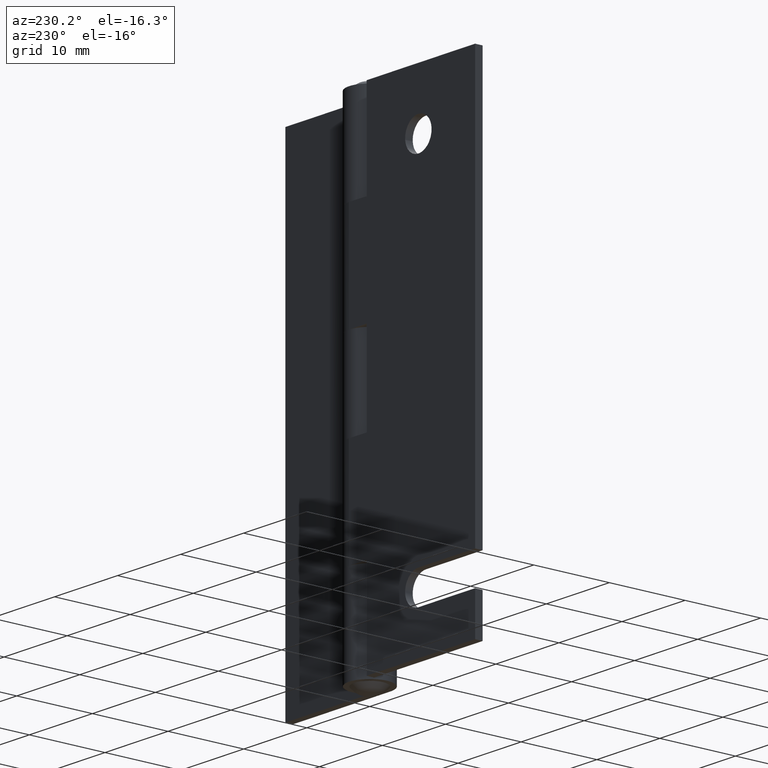
[diagram: clean part render]
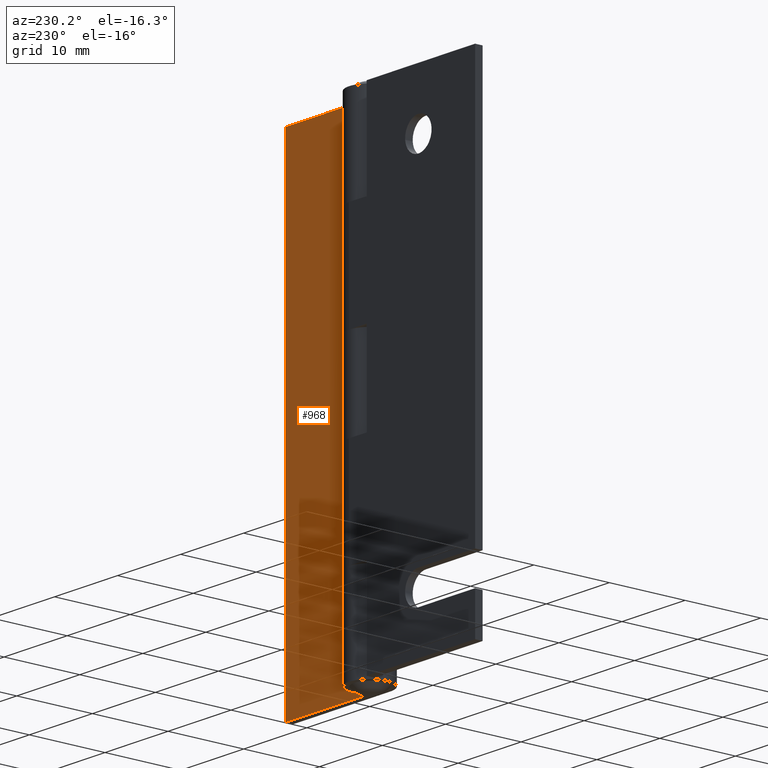
[diagram: same view with one face highlighted and labeled with its STEP entity id]
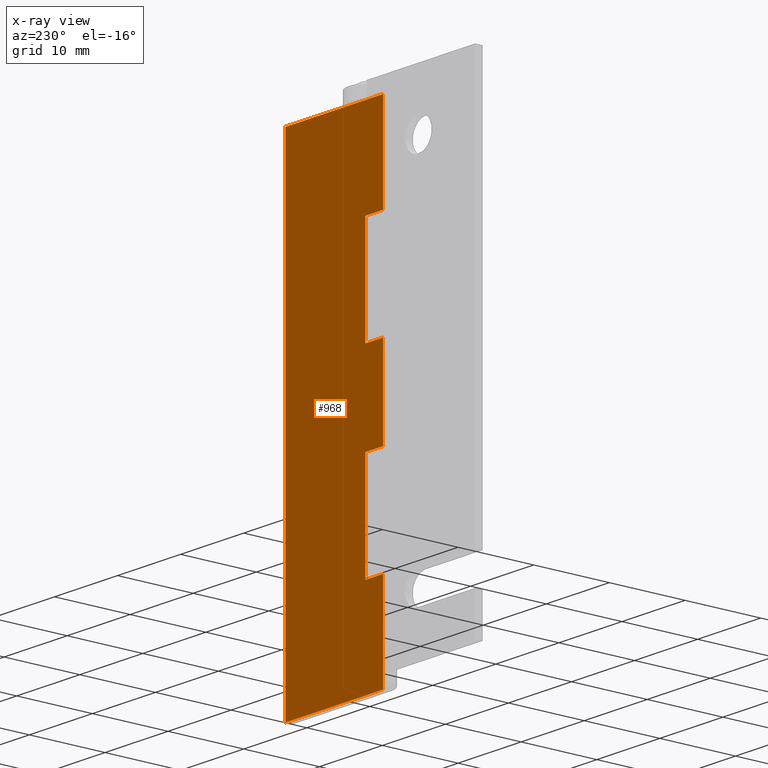
[diagram: x-ray of the same camera — body ghosted, the highlighted face saturated]
A machine part, auxiliary view. The second image highlights one B-rep face of the part: STEP entity #968.
The next image is the same camera in x-ray: the body ghosted, the highlighted face saturated — about 0% of this face is hidden behind the body in this view.
In plain terms, the highlighted face is a freeform B-spline surface patch.
Its self-contained STEP definition (entity closure, byte-faithful):
#460=CARTESIAN_POINT('',(0.0,-1.750000000000000,25.750000000000000));
#461=VERTEX_POINT('',#460);
#481=CARTESIAN_POINT('',(2.800000000000000,-1.750000000000030,25.750000000000000));
#482=VERTEX_POINT('',#481);
#483=CARTESIAN_POINT('',(0.0,-1.750000000000000,25.750000000000000));
#484=CARTESIAN_POINT('',(2.800000000000000,-1.750000000000030,25.750000000000000));
#485=QUASI_UNIFORM_CURVE('',1,(#483,#484),.UNSPECIFIED.,.F.,.U.);
#486=EDGE_CURVE('',#461,#482,#485,.T.);
#508=CARTESIAN_POINT('',(2.800000000000000,-1.750000000000030,12.250000000000000));
#509=VERTEX_POINT('',#508);
#510=CARTESIAN_POINT('',(2.800000000000000,-1.750000000000030,25.750000000000000));
#511=CARTESIAN_POINT('',(2.800000000000000,-1.750000000000030,12.250000000000000));
#512=QUASI_UNIFORM_CURVE('',1,(#510,#511),.UNSPECIFIED.,.F.,.U.);
#513=EDGE_CURVE('',#482,#509,#512,.T.);
#565=CARTESIAN_POINT('',(0.0,-1.750000000000000,12.250000000000000));
#566=VERTEX_POINT('',#565);
#567=CARTESIAN_POINT('',(2.800000000000000,-1.750000000000030,12.250000000000000));
#568=CARTESIAN_POINT('',(0.0,-1.750000000000000,12.250000000000000));
#569=QUASI_UNIFORM_CURVE('',1,(#567,#568),.UNSPECIFIED.,.F.,.U.);
#570=EDGE_CURVE('',#509,#566,#569,.T.);
#636=CARTESIAN_POINT('',(2.800000000000000,-1.750000000000000,37.250000000000000));
#637=VERTEX_POINT('',#636);
#643=CARTESIAN_POINT('',(0.0,-1.750000000000000,37.250000000000000));
#644=VERTEX_POINT('',#643);
#645=CARTESIAN_POINT('',(2.800000000000000,-1.750000000000000,37.250000000000000));
#646=CARTESIAN_POINT('',(0.0,-1.750000000000000,37.250000000000000));
#647=QUASI_UNIFORM_CURVE('',1,(#645,#646),.UNSPECIFIED.,.F.,.U.);
#648=EDGE_CURVE('',#637,#644,#647,.T.);
#684=CARTESIAN_POINT('',(2.800000000000000,-1.750000000000030,50.750000000000000));
#685=VERTEX_POINT('',#684);
#686=CARTESIAN_POINT('',(2.800000000000000,-1.750000000000030,50.750000000000000));
#687=CARTESIAN_POINT('',(2.800000000000000,-1.750000000000000,37.250000000000000));
#688=QUASI_UNIFORM_CURVE('',1,(#686,#687),.UNSPECIFIED.,.F.,.U.);
#689=EDGE_CURVE('',#685,#637,#688,.T.);
#742=CARTESIAN_POINT('',(0.0,-1.750000000000000,50.750000000000000));
#743=VERTEX_POINT('',#742);
#763=CARTESIAN_POINT('',(0.0,-1.750000000000000,50.750000000000000));
#764=CARTESIAN_POINT('',(2.800000000000000,-1.750000000000030,50.750000000000000));
#765=QUASI_UNIFORM_CURVE('',1,(#763,#764),.UNSPECIFIED.,.F.,.U.);
#766=EDGE_CURVE('',#743,#685,#765,.T.);
#782=CARTESIAN_POINT('',(0.0,-1.750000000000000,0.0));
#783=VERTEX_POINT('',#782);
#805=CARTESIAN_POINT('',(15.500000000000000,-1.750000000000000,0.0));
#806=VERTEX_POINT('',#805);
#807=CARTESIAN_POINT('',(0.0,-1.750000000000000,0.0));
#808=CARTESIAN_POINT('',(15.500000000000000,-1.750000000000000,0.0));
#809=QUASI_UNIFORM_CURVE('',1,(#807,#808),.UNSPECIFIED.,.F.,.U.);
#810=EDGE_CURVE('',#783,#806,#809,.T.);
#860=CARTESIAN_POINT('',(0.0,-1.750000000000000,63.0));
#861=VERTEX_POINT('',#860);
#918=CARTESIAN_POINT('',(15.500000000000000,-1.750000000000000,63.0));
#919=VERTEX_POINT('',#918);
#925=CARTESIAN_POINT('',(0.0,-1.750000000000000,63.0));
#926=CARTESIAN_POINT('',(15.500000000000000,-1.750000000000000,63.0));
#927=QUASI_UNIFORM_CURVE('',1,(#925,#926),.UNSPECIFIED.,.F.,.U.);
#928=EDGE_CURVE('',#861,#919,#927,.T.);
#933=CARTESIAN_POINT('',(-0.774224969957992,-1.750000000000000,-3.146849877893774));
#934=CARTESIAN_POINT('',(-0.774224969957992,-1.750000000000000,66.146851567685474));
#935=CARTESIAN_POINT('',(16.274225385700390,-1.750000000000000,-3.146849877893774));
#936=CARTESIAN_POINT('',(16.274225385700390,-1.750000000000000,66.146851567685474));
#937=B_SPLINE_SURFACE_WITH_KNOTS('',1,1,((#933,#935),(#934,#936)),.UNSPECIFIED.,.F.,.F.,.U.,(2,2),(2,2),(0.0,69.293701445579245),(0.0,17.048450355658382),.UNSPECIFIED.);
#938=ORIENTED_EDGE('',*,*,#570,.F.);
#939=ORIENTED_EDGE('',*,*,#513,.F.);
#940=ORIENTED_EDGE('',*,*,#486,.F.);
#941=CARTESIAN_POINT('',(0.0,-1.750000000000000,37.250000000000000));
#942=CARTESIAN_POINT('',(0.0,-1.750000000000000,25.750000000000000));
#943=QUASI_UNIFORM_CURVE('',1,(#941,#942),.UNSPECIFIED.,.F.,.U.);
#944=EDGE_CURVE('',#644,#461,#943,.T.);
#945=ORIENTED_EDGE('',*,*,#944,.F.);
#946=ORIENTED_EDGE('',*,*,#648,.F.);
#947=ORIENTED_EDGE('',*,*,#689,.F.);
#948=ORIENTED_EDGE('',*,*,#766,.F.);
#949=CARTESIAN_POINT('',(0.0,-1.750000000000000,63.0));
#950=CARTESIAN_POINT('',(0.0,-1.750000000000000,50.750000000000000));
#951=QUASI_UNIFORM_CURVE('',1,(#949,#950),.UNSPECIFIED.,.F.,.U.);
#952=EDGE_CURVE('',#861,#743,#951,.T.);
#953=ORIENTED_EDGE('',*,*,#952,.F.);
#954=ORIENTED_EDGE('',*,*,#928,.T.);
#955=CARTESIAN_POINT('',(15.500000000000000,-1.750000000000000,63.0));
#956=CARTESIAN_POINT('',(15.500000000000000,-1.750000000000000,0.0));
#957=QUASI_UNIFORM_CURVE('',1,(#955,#956),.UNSPECIFIED.,.F.,.U.);
#958=EDGE_CURVE('',#919,#806,#957,.T.);
#959=ORIENTED_EDGE('',*,*,#958,.T.);
#960=ORIENTED_EDGE('',*,*,#810,.F.);
#961=CARTESIAN_POINT('',(0.0,-1.750000000000000,12.250000000000000));
#962=CARTESIAN_POINT('',(0.0,-1.750000000000000,0.0));
#963=QUASI_UNIFORM_CURVE('',1,(#961,#962),.UNSPECIFIED.,.F.,.U.);
#964=EDGE_CURVE('',#566,#783,#963,.T.);
#965=ORIENTED_EDGE('',*,*,#964,.F.);
#966=EDGE_LOOP('',(#938,#939,#940,#945,#946,#947,#948,#953,#954,#959,#960,#965));
#967=FACE_OUTER_BOUND('',#966,.T.);
#968=ADVANCED_FACE('',(#967),#937,.T.);